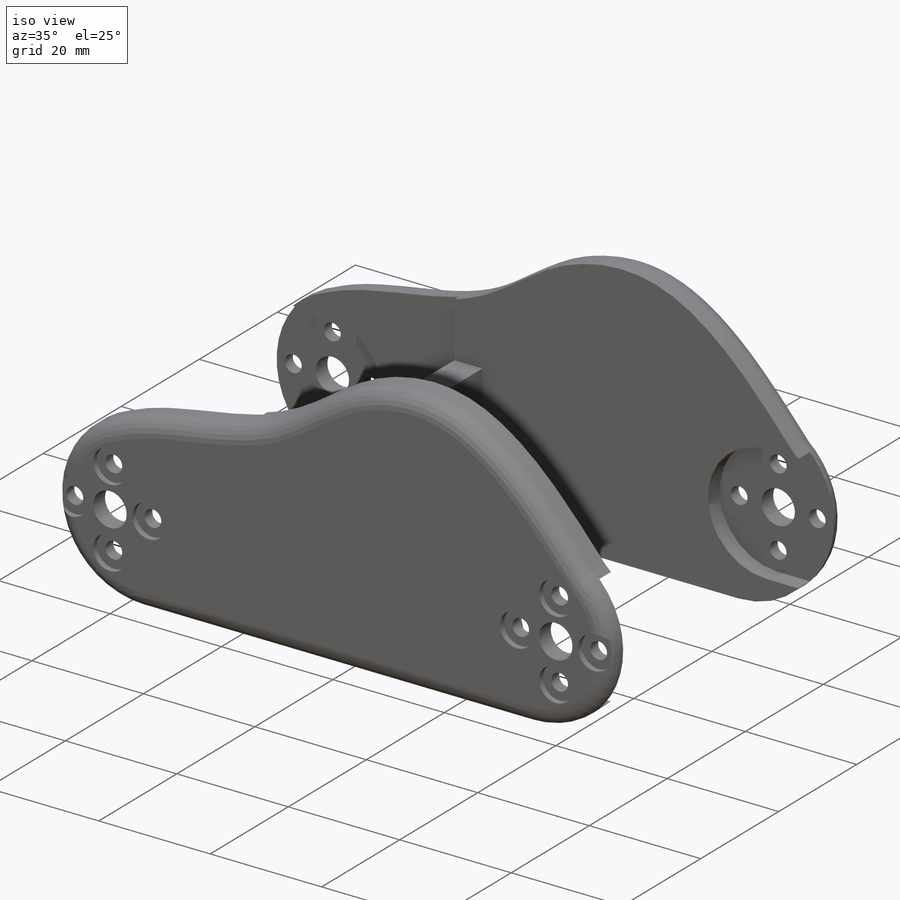
[diagram: iso view]
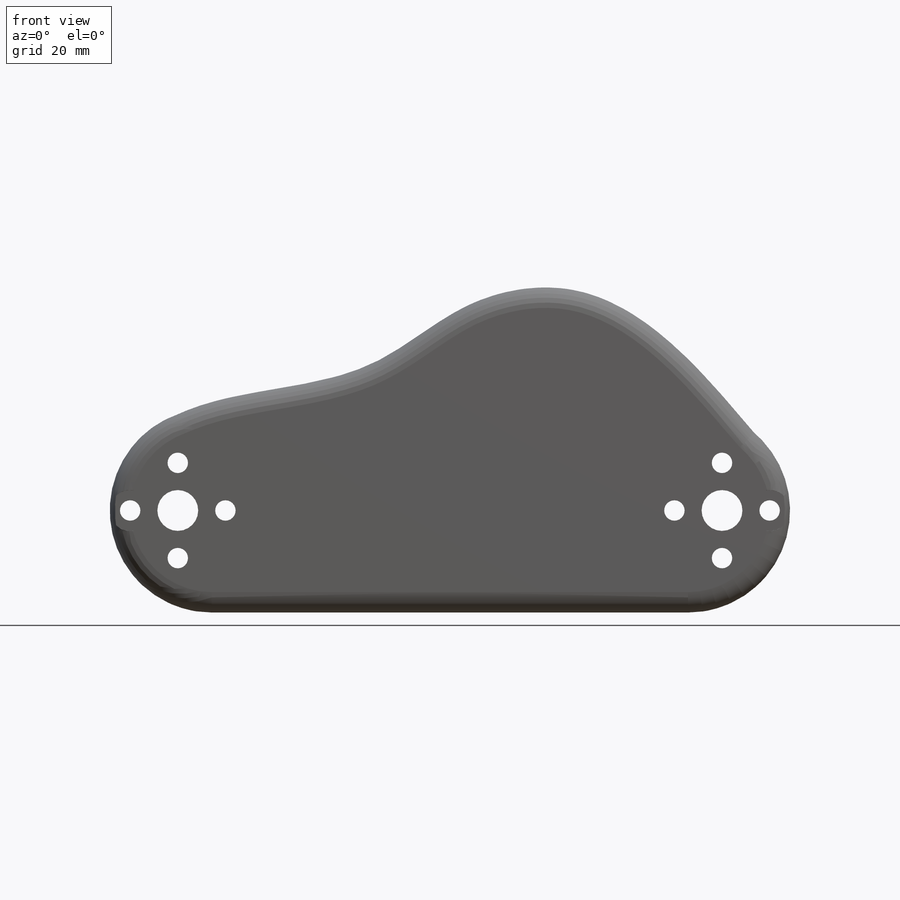
[diagram: front view]
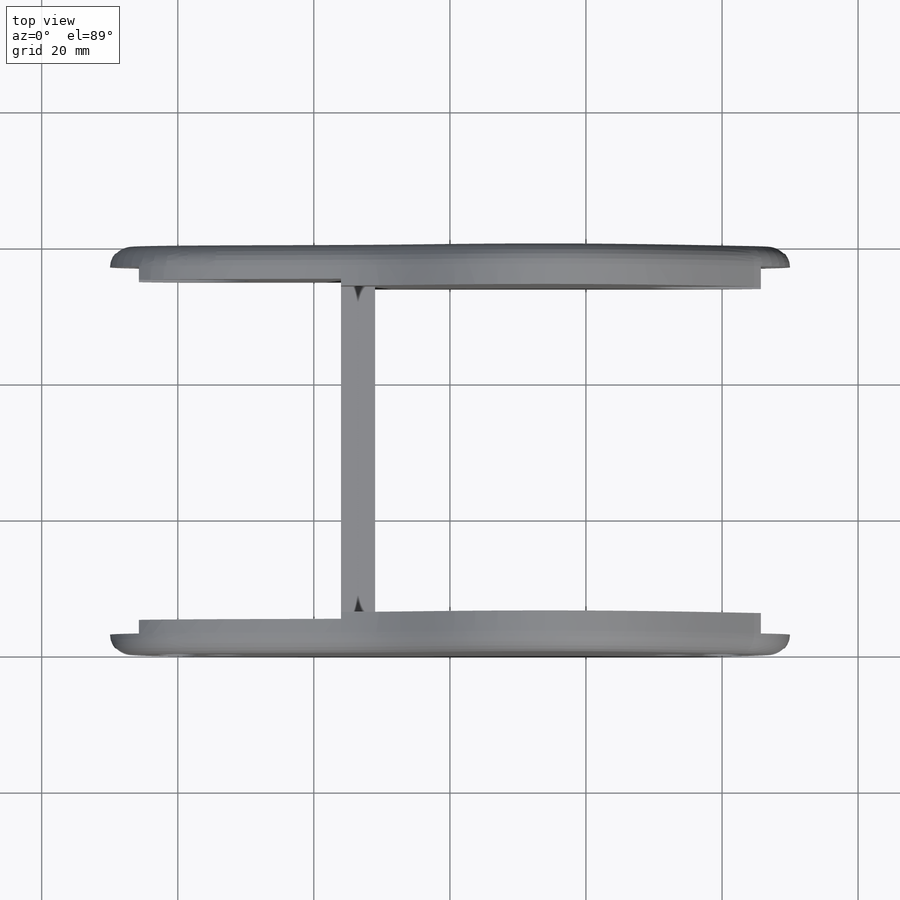
[diagram: top view]
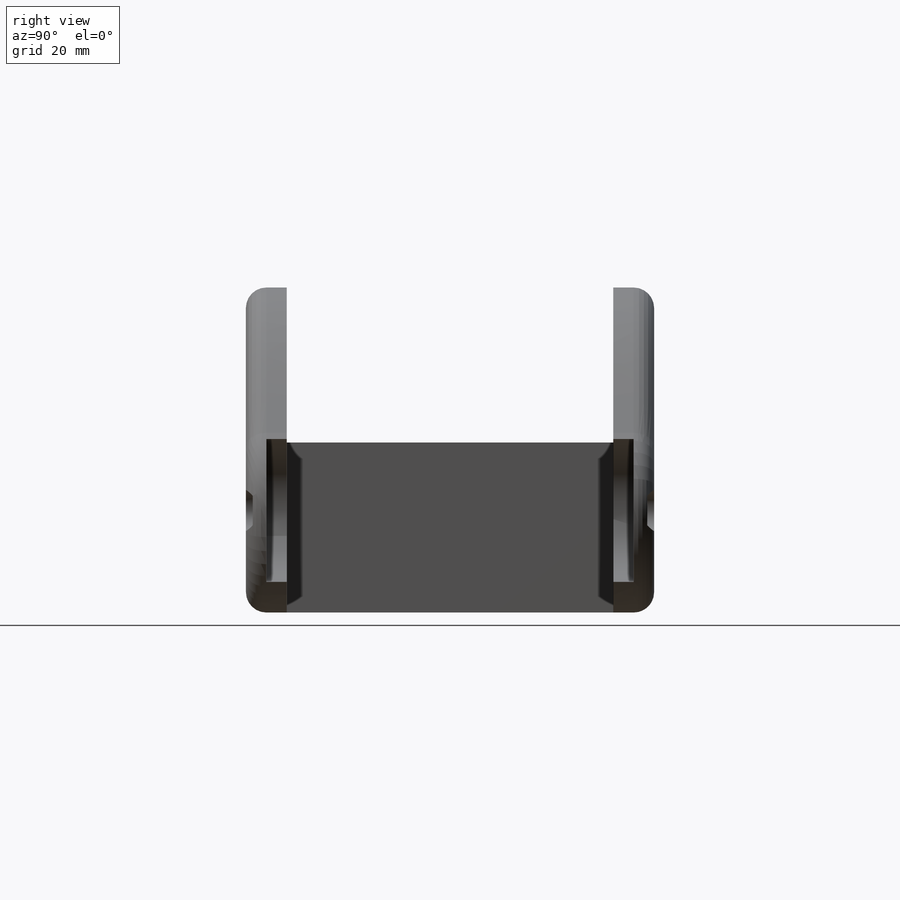
[diagram: right view]
SOLIDWORKS PART (.sldprt)
format: sldprt  version: not decoded by parser v0  size: 611,840 bytes
history: native  units: mm
features: sketch x11, cut_extrude x10, plane x3, material x1, extrude x1, fillet x1 (+10 scaffold rows collapsed)
feature tree (37):
  scaffold x10  (default folders/planes/origin — collapsed)
  material  "Material <sin especificar>"
  plane  "Alzado"
  plane  "Planta"
  plane  "Vista lateral"
  sketch  "Croquis1"  dims[D1=1.0mm]
  extrude  "Saliente-Extruir1"  Depth=50mm
  sketch  "Croquis2"  dims[D1=25.0mm]
  cut_extrude  "Cortar-Extruir1"  Depth=50mm
  sketch  "Croquis3"  dims[D1=5.0mm]
  cut_extrude  "Cortar-Extruir2"  Depth=132mm
  fillet  "Redondeo1"  Radius=3mm
  sketch  "Croquis5"  dims[D1=10.0mm]
  cut_extrude  "Cortar-Extruir3"  Depth=31mm
  sketch  "Croquis6"  dims[D1=~23.584614mm]
  cut_extrude  "Cortar-Extruir4"  Depth=3mm
  sketch  "Croquis7"
  cut_extrude  "Cortar-Extruir5"  Depth=3mm
  sketch  "Croquis8"  dims[c1.D1=~8.514028mm c1.D2=~6.294049mm c2.D1=4.0 c2.D2=4.0]
  cut_extrude  "Cortar-Extruir6"  Depth=1mm
  sketch  "Croquis9"  dims[c1.D1=~14.397596mm c1.D2=~5.617238mm c2.D1=4.0 c2.D2=4.0]
  cut_extrude  "Cortar-Extruir7"  Depth=1mm
  sketch  "Croquis10"  dims[D1=15.0mm]
  cut_extrude  "Cortar-Extruir8"  Depth=10mm
  sketch  "Croquis12"
  cut_extrude  "Cortar-Extruir9"  Depth=10mm
  sketch  "Croquis13"
  cut_extrude  "Cortar-Extruir10"  Depth=10mm
decode coverage: 20 of 23 modeling features carry decoded parameters
note: ~ marks probable driven/reference dimensions
note: suppression state not decoded; provenance and decode notes live in map.json
